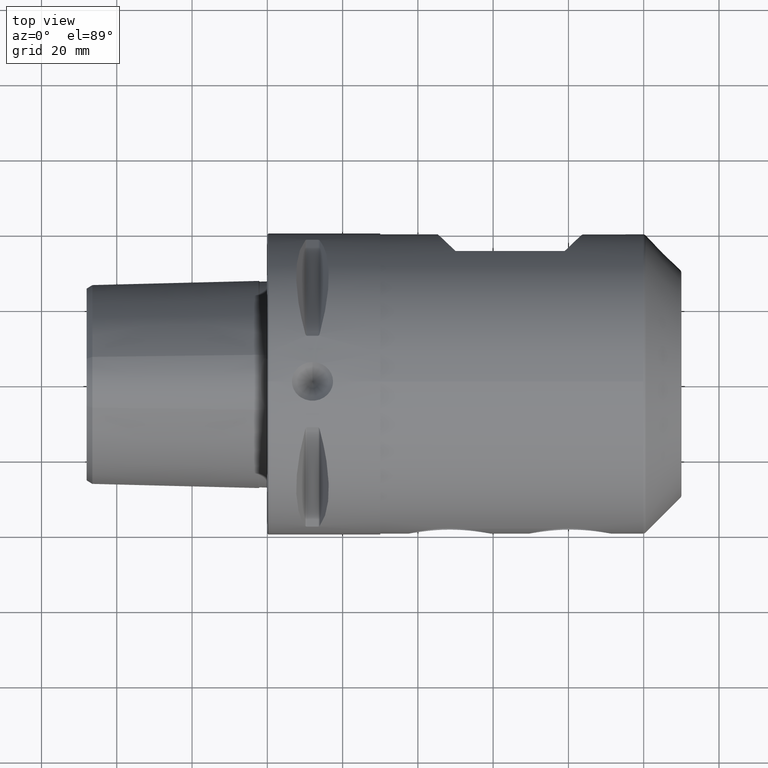
[diagram: clean part render]
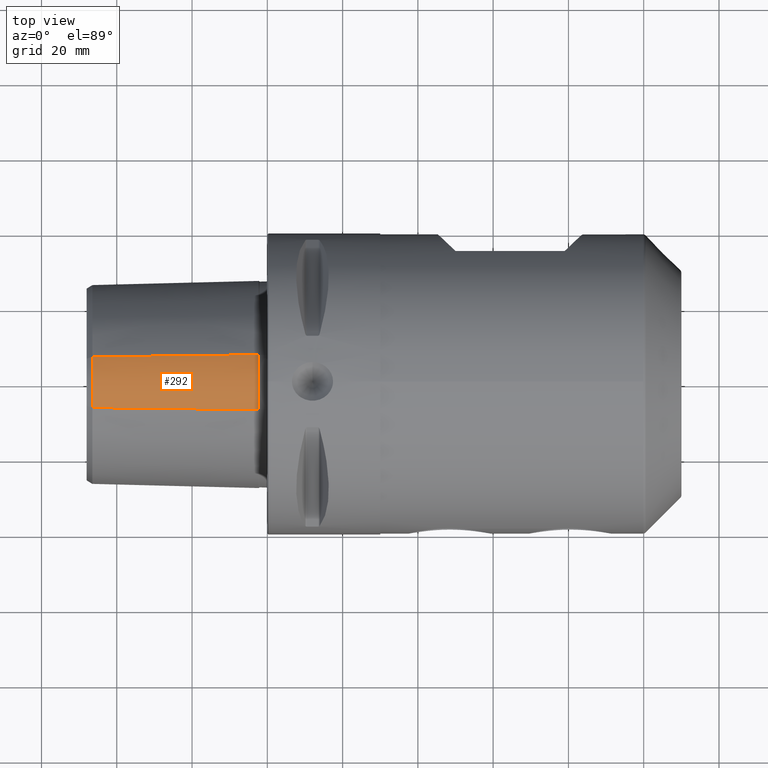
[diagram: same view with one face highlighted and labeled with its STEP entity id]
A machine part, top view. The second image highlights one B-rep face of the part: STEP entity #292.
In plain terms, the highlighted conical surface has half-angle 1.432 deg.
Its self-contained STEP definition (entity closure, byte-faithful):
#292 = ADVANCED_FACE( '', ( #638 ), #639, .T. );
#638 = FACE_OUTER_BOUND( '', #1009, .T. );
#639 = CONICAL_SURFACE( '', #1010, 14.5717967697245, 0.0249969933592226 );
#1009 = EDGE_LOOP( '', ( #1691, #1692, #1693, #1694 ) );
#1010 = AXIS2_PLACEMENT_3D( '', #1695, #1696, #1697 );
#1691 = ORIENTED_EDGE( '', *, *, #2147, .F. );
#1692 = ORIENTED_EDGE( '', *, *, #2164, .T. );
#1693 = ORIENTED_EDGE( '', *, *, #2165, .T. );
#1694 = ORIENTED_EDGE( '', *, *, #2117, .T. );
#1695 = CARTESIAN_POINT( '', ( -3.00000000000000, -1.30104260698260E-015, 14.9282032302755 ) );
#1696 = DIRECTION( '', ( 1.00000000000000, -0.000000000000000, 0.000000000000000 ) );
#1697 = DIRECTION( '', ( 0.000000000000000, 0.000000000000000, -1.00000000000000 ) );
#2117 = EDGE_CURVE( '', #2539, #2377, #2541, .T. );
#2147 = EDGE_CURVE( '', #2409, #2377, #2576, .T. );
#2164 = EDGE_CURVE( '', #2409, #2234, #2596, .T. );
#2165 = EDGE_CURVE( '', #2234, #2539, #2597, .T. );
#2234 = VERTEX_POINT( '', #2697 );
#2377 = VERTEX_POINT( '', #3121 );
#2409 = VERTEX_POINT( '', #3161 );
#2539 = VERTEX_POINT( '', #3723 );
#2541 = CIRCLE( '', #3726, 14.5897835000573 );
#2576 = LINE( '', #3901, #3902 );
#2596 = CIRCLE( '', #4016, 13.4846392038816 );
#2597 = LINE( '', #4017, #4018 );
#2697 = CARTESIAN_POINT( '', ( -46.4824742362102, -6.74231960194083, 26.6062433417045 ) );
#3121 = CARTESIAN_POINT( '', ( -2.28059412649914, 7.29489175002864, 27.5633263770401 ) );
#3161 = CARTESIAN_POINT( '', ( -46.4824742362102, 6.74231960194081, 26.6062433417045 ) );
#3723 = CARTESIAN_POINT( '', ( -2.28059412649917, -7.29489175002866, 27.5633263770401 ) );
#3726 = AXIS2_PLACEMENT_3D( '', #4381, #4382, #4383 );
#3901 = CARTESIAN_POINT( '', ( -3.00000000000000, 7.28589838486226, 27.5477494116410 ) );
#3902 = VECTOR( '', #4416, 1000.00000000000 );
#4016 = AXIS2_PLACEMENT_3D( '', #4426, #4427, #4428 );
#4017 = CARTESIAN_POINT( '', ( -3.00000000000000, -7.28589838486228, 27.5477494116410 ) );
#4018 = VECTOR( '', #4429, 1000.00000000000 );
#4381 = CARTESIAN_POINT( '', ( -2.28059412649917, -1.30104260698260E-015, 14.9282032302755 ) );
#4382 = DIRECTION( '', ( -1.00000000000000, 6.12303176911189E-017, 0.000000000000000 ) );
#4383 = DIRECTION( '', ( -6.12303176911189E-017, -1.00000000000000, 0.000000000000000 ) );
#4416 = DIRECTION( '', ( 0.999687591429374, 0.0124971951066741, 0.0216457768768607 ) );
#4426 = CARTESIAN_POINT( '', ( -46.4824742362102, 4.00320528002332E-015, 14.9282032302755 ) );
#4427 = DIRECTION( '', ( 1.00000000000000, 0.000000000000000, 0.000000000000000 ) );
#4428 = DIRECTION( '', ( 0.000000000000000, 0.000000000000000, -1.00000000000000 ) );
#4429 = DIRECTION( '', ( 0.999687591429374, -0.0124971951066742, 0.0216457768768607 ) );